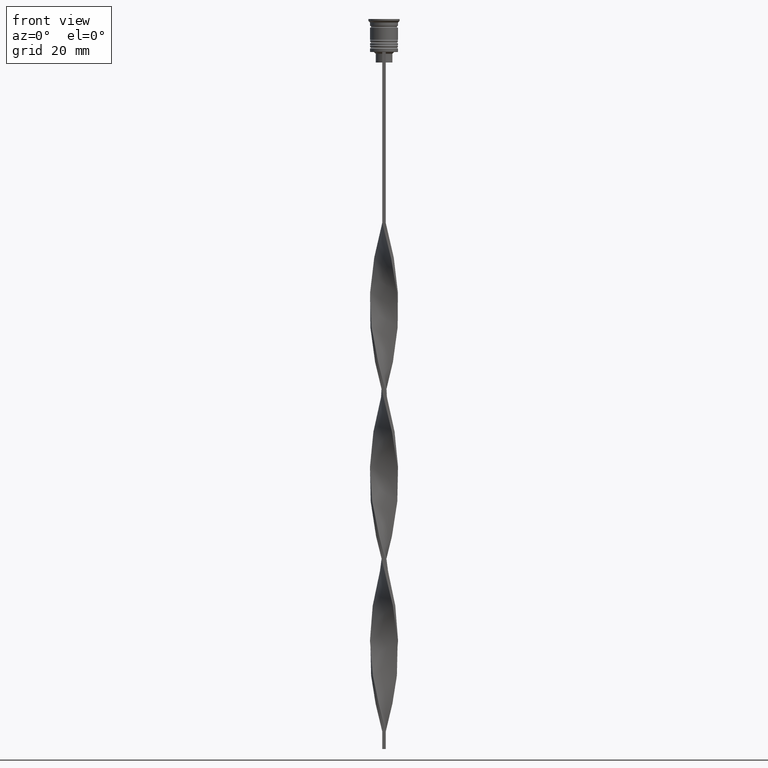
[diagram: clean part render]
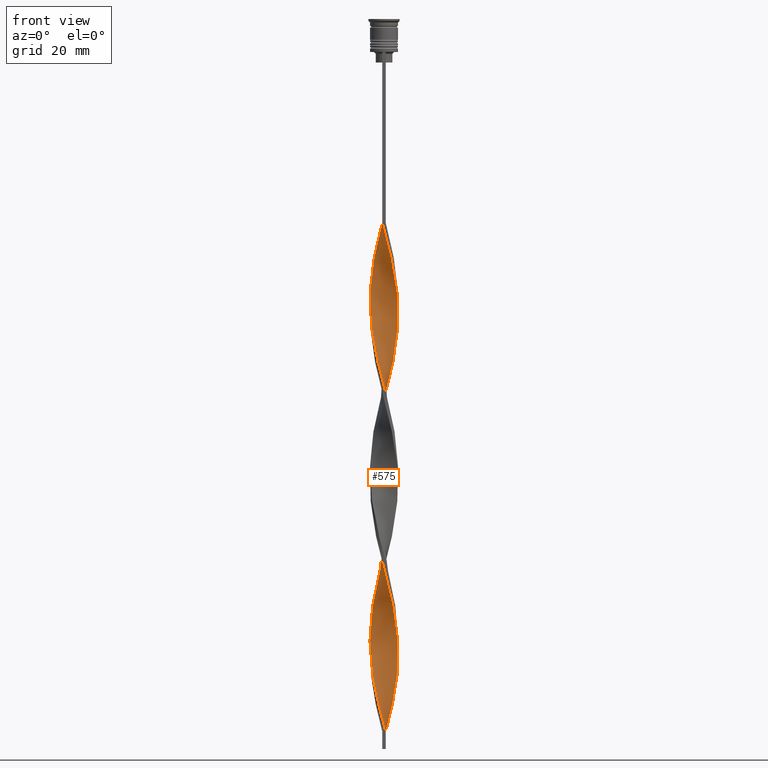
[diagram: same view with one face highlighted and labeled with its STEP entity id]
A machine part, front view. The second image highlights one B-rep face of the part: STEP entity #575.
In plain terms, the highlighted face is a freeform B-spline surface patch.
Its self-contained STEP definition (entity closure, byte-faithful):
#12 = CARTESIAN_POINT ( 'NONE',  ( 0.5000000000000005551, 4.000000000000000000, -204.5000000000000000 ) ) ;
#13 = CARTESIAN_POINT ( 'NONE',  ( -0.5000000000000000000, -4.000000000000000000, -58.50000000000000000 ) ) ;
#23 = CARTESIAN_POINT ( 'NONE',  ( -4.029070884911789108, -0.1287936502943091699, -81.40196078431371518 ) ) ;
#29 = ORIENTED_EDGE ( 'NONE', *, *, #3260, .T. ) ;
#34 = CARTESIAN_POINT ( 'NONE',  ( -4.041005374160881125, 0.2445547488692185190, -79.97058823529411598 ) ) ;
#53 = CARTESIAN_POINT ( 'NONE',  ( 3.564473500076194235, -1.919390561205869261, -174.4411764705882320 ) ) ;
#68 = CARTESIAN_POINT ( 'NONE',  ( -3.564473500076194235, -1.919390561205868817, -88.55882352941175384 ) ) ;
#69 = CARTESIAN_POINT ( 'NONE',  ( 3.856468655234277065, -1.231739002543613237, -79.97058823529411598 ) ) ;
#75 = CARTESIAN_POINT ( 'NONE',  ( 2.325278115975899507, -3.292883490705915239, -69.95098039215686470 ) ) ;
#86 = CARTESIAN_POINT ( 'NONE',  ( 3.679781925323283076, 1.687820026322619738, -188.7549019607843093 ) ) ;
#97 = CARTESIAN_POINT ( 'NONE',  ( -3.493386227310586012, 2.011529931876905763, -72.81372549019607732 ) ) ;
#110 = CARTESIAN_POINT ( 'NONE',  ( 2.821583537095226468, -2.903135856687523830, -117.1862745098039369 ) ) ;
#117 = CARTESIAN_POINT ( 'NONE',  ( -0.8706545849681190941, 3.953668176878985197, -59.93137254901961342 ) ) ;
#118 = CARTESIAN_POINT ( 'NONE',  ( 3.564473500076194235, -1.919390561205869261, -77.10784313725490335 ) ) ;
#131 = CARTESIAN_POINT ( 'NONE',  ( -1.582314657248345080, 3.726367102775659745, -160.1274509803922115 ) ) ;
#140 = CARTESIAN_POINT ( 'NONE',  ( 3.936802525448486634, -0.8669405260007252423, -81.40196078431371518 ) ) ;
#152 = CARTESIAN_POINT ( 'NONE',  ( -1.911202779450789535, 3.549268084523846678, -161.5588235294117680 ) ) ;
#175 = CARTESIAN_POINT ( 'NONE',  ( 1.680620083644617901, 3.664084624357133446, -147.2450980392156907 ) ) ;
#180 = CARTESIAN_POINT ( 'NONE',  ( 3.803522343308519016, -1.335371777428620899, -124.3431372549019471 ) ) ;
#188 = CARTESIAN_POINT ( 'NONE',  ( 3.357783987531979708, 2.230535068783685571, -138.6568627450980387 ) ) ;
#195 = CARTESIAN_POINT ( 'NONE',  ( -2.630408706874892921, -3.077414741952791744, -191.6176470588235077 ) ) ;
#202 = CARTESIAN_POINT ( 'NONE',  ( -2.325278115975899951, -3.292883490705914795, -193.0490196078431211 ) ) ;
#205 = CARTESIAN_POINT ( 'NONE',  ( -4.029070884911789996, 0.1287936502943111128, -132.9313725490196134 ) ) ;
#210 = CARTESIAN_POINT ( 'NONE',  ( -3.679781925323283076, 1.687820026322619293, -171.5784313725490620 ) ) ;
#229 = CARTESIAN_POINT ( 'NONE',  ( -2.890751590931329496, 2.809547159157145924, -121.4803921568627345 ) ) ;
#233 = DIRECTION ( 'NONE',  ( 0.000000000000000000, 1.000000000000000000, 0.000000000000000000 ) ) ;
#234 = CARTESIAN_POINT ( 'NONE',  ( -4.041005374160881125, -0.2445547488692193794, -134.3627450980391984 ) ) ;
#237 = CARTESIAN_POINT ( 'NONE',  ( -3.306990529297890724, 2.335239837431193788, -168.7156862745097783 ) ) ;
#246 = CARTESIAN_POINT ( 'NONE',  ( -1.680620083644616125, -3.664084624357134778, -195.9117647058823479 ) ) ;
#248 = CARTESIAN_POINT ( 'NONE',  ( -2.325278115975899507, 3.292883490705915239, -118.6176470588235219 ) ) ;
#255 = CARTESIAN_POINT ( 'NONE',  ( 2.890751590931330828, 2.809547159157144591, -141.5196078431372371 ) ) ;
#267 = CARTESIAN_POINT ( 'NONE',  ( 1.582314657248345968, 3.726367102775659301, -102.8725490196078312 ) ) ;
#272 = CARTESIAN_POINT ( 'NONE',  ( 3.064287033196559040, 2.619187847059357477, -95.71568627450979250 ) ) ;
#283 = EDGE_CURVE ( 'NONE', #748, #630, #1551, .T. ) ;
#289 = CARTESIAN_POINT ( 'NONE',  ( 1.226484621108232531, 3.840017639827321805, -104.3039215686274446 ) ) ;
#293 = CARTESIAN_POINT ( 'NONE',  ( 3.679781925323283076, 1.687820026322619738, -91.42156862745096646 ) ) ;
#313 = CARTESIAN_POINT ( 'NONE',  ( 1.911202779450789535, 3.549268084523846678, -101.4411764705882320 ) ) ;
#328 = CARTESIAN_POINT ( 'NONE',  ( 3.927262761293755400, 0.9829235285346250572, -185.8921568627451109 ) ) ;
#331 = CARTESIAN_POINT ( 'NONE',  ( -3.493386227310586012, 2.011529931876905763, -72.81372549019607732 ) ) ;
#332 = CARTESIAN_POINT ( 'NONE',  ( 2.630408706874892921, -3.077414741952791744, -71.38235294117646390 ) ) ;
#351 = CARTESIAN_POINT ( 'NONE',  ( -2.325278115975899951, -3.292883490705914795, -95.71568627450979250 ) ) ;
#354 = CARTESIAN_POINT ( 'NONE',  ( 3.493386227310586456, 2.011529931876905319, -92.85294117647057988 ) ) ;
#357 = CARTESIAN_POINT ( 'NONE',  ( -0.5000000000000000000, -4.000000000000000000, -58.50000000000000000 ) ) ;
#372 = CARTESIAN_POINT ( 'NONE',  ( 1.582314657248345968, 3.726367102775659745, -200.2058823529411598 ) ) ;
#373 = CARTESIAN_POINT ( 'NONE',  ( 3.984134067727318040, 0.6137391387019219824, -87.12745098039215463 ) ) ;
#386 = CARTESIAN_POINT ( 'NONE',  ( 3.984134067727318040, 0.6137391387019219824, -184.4607843137254690 ) ) ;
#389 = CARTESIAN_POINT ( 'NONE',  ( -2.530837219374230340, 3.137652461479778943, -67.08823529411763786 ) ) ;
#396 = CARTESIAN_POINT ( 'NONE',  ( 0.5000000000000002220, 1.333333333333333481, -204.5000000000000000 ) ) ;
#410 = CARTESIAN_POINT ( 'NONE',  ( -1.911202779450789535, 3.549268084523846678, -64.22549019607842524 ) ) ;
#420 = CARTESIAN_POINT ( 'NONE',  ( -3.710471077655235206, -1.575564781874741138, -87.12745098039215463 ) ) ;
#434 = CARTESIAN_POINT ( 'NONE',  ( 2.530837219374230784, -3.137652461479778498, -115.7549019607843093 ) ) ;
#452 = CARTESIAN_POINT ( 'NONE',  ( 0.9787305500464340557, 3.910509750710999821, -150.1078431372548891 ) ) ;
#469 = CARTESIAN_POINT ( 'NONE',  ( -3.856468655234276621, -1.231739002543613681, -183.0294117647059124 ) ) ;
#477 = CARTESIAN_POINT ( 'NONE',  ( -2.325278115975899951, -3.292883490705914795, -193.0490196078431211 ) ) ;
#488 = CARTESIAN_POINT ( 'NONE',  ( -2.821583537095227356, 2.903135856687522942, -165.8529411764705799 ) ) ;
#491 = ORIENTED_EDGE ( 'NONE', *, *, #543, .F. ) ;
#496 = CARTESIAN_POINT ( 'NONE',  ( -0.6163684578805426195, -4.001202492166770597, -200.2058823529411882 ) ) ;
#506 = CARTESIAN_POINT ( 'NONE',  ( 3.493386227310585568, -2.011529931876906208, -121.4803921568627345 ) ) ;
#513 = CARTESIAN_POINT ( 'NONE',  ( -3.064287033196558596, 2.619187847059357921, -167.2843137254901933 ) ) ;
#525 = CARTESIAN_POINT ( 'NONE',  ( -2.630408706874893365, 3.077414741952791299, -120.0490196078431353 ) ) ;
#530 = CARTESIAN_POINT ( 'NONE',  ( 3.564473500076194679, 1.919390561205867707, -137.2254901960784537 ) ) ;
#543 = EDGE_CURVE ( 'NONE', #630, #885, #3564, .T. ) ;
#549 = CARTESIAN_POINT ( 'NONE',  ( -3.564473500076193790, 1.919390561205869039, -125.7745098039216032 ) ) ;
#555 = CARTESIAN_POINT ( 'NONE',  ( 3.064287033196558596, -2.619187847059357921, -118.6176470588235219 ) ) ;
#570 = CARTESIAN_POINT ( 'NONE',  ( 3.151094474987766958, -2.541679576361500104, -171.5784313725490620 ) ) ;
#574 = CARTESIAN_POINT ( 'NONE',  ( 1.226484621108232531, 3.840017639827321805, -104.3039215686274446 ) ) ;
#575 = ADVANCED_FACE ( 'NONE', ( #2290 ), #2368, .T. ) ;
#590 = CARTESIAN_POINT ( 'NONE',  ( -3.936802525448487522, 0.8669405260007250202, -130.0686274509803866 ) ) ;
#594 = CARTESIAN_POINT ( 'NONE',  ( -3.306990529297890724, -2.335239837431195120, -142.9509803921568789 ) ) ;
#613 = CARTESIAN_POINT ( 'NONE',  ( 0.2435115214243304405, -4.023767157643892034, -158.6960784313725412 ) ) ;
#630 = VERTEX_POINT ( 'NONE', #1186 ) ;
#632 = CARTESIAN_POINT ( 'NONE',  ( 3.803522343308519016, 1.335371777428621565, -187.3235294117646959 ) ) ;
#636 = CARTESIAN_POINT ( 'NONE',  ( -3.927262761293754956, 0.9829235285346253903, -77.10784313725490335 ) ) ;
#639 = CARTESIAN_POINT ( 'NONE',  ( 0.4999999999999994449, -4.000000000000000000, -204.5000000000000000 ) ) ;
#655 = CARTESIAN_POINT ( 'NONE',  ( -3.710471077655235206, -1.575564781874741138, -87.12745098039215463 ) ) ;
#670 = CARTESIAN_POINT ( 'NONE',  ( 1.911202779450789535, 3.549268084523846678, -198.7745098039215463 ) ) ;
#674 = CARTESIAN_POINT ( 'NONE',  ( -1.341092642212326824, -3.819817009255229934, -100.0098039215686327 ) ) ;
#676 = CARTESIAN_POINT ( 'NONE',  ( 2.530837219374230340, 3.137652461479778943, -98.57843137254901933 ) ) ;
#696 = CARTESIAN_POINT ( 'NONE',  ( -3.064287033196558596, 2.619187847059357921, -69.95098039215686470 ) ) ;
#712 = CARTESIAN_POINT ( 'NONE',  ( 3.984134067727318040, 0.6137391387019219824, -184.4607843137254690 ) ) ;
#717 = CARTESIAN_POINT ( 'NONE',  ( -4.017136395662697979, -0.5021420494578370253, -82.83333333333332860 ) ) ;
#719 = CARTESIAN_POINT ( 'NONE',  ( 0.4999999999999997780, -1.333333333333333481, -204.5000000000000000 ) ) ;
#730 = CARTESIAN_POINT ( 'NONE',  ( 0.4999999999999994449, -4.000000000000000000, -107.1666666666666572 ) ) ;
#740 = CARTESIAN_POINT ( 'NONE',  ( 1.911202779450790201, -3.549268084523846234, -112.8921568627450966 ) ) ;
#748 = VERTEX_POINT ( 'NONE', #357 ) ;
#754 = CARTESIAN_POINT ( 'NONE',  ( 1.582314657248345080, -3.726367102775659745, -111.4607843137254974 ) ) ;
#760 = CARTESIAN_POINT ( 'NONE',  ( 0.8706545849681194271, -3.953668176878985197, -108.5980392156862706 ) ) ;
#770 = CARTESIAN_POINT ( 'NONE',  ( -3.493386227310586012, 2.011529931876905763, -170.1470588235293917 ) ) ;
#776 = CARTESIAN_POINT ( 'NONE',  ( -2.890751590931330384, -2.809547159157145035, -190.1862745098039227 ) ) ;
#784 = CARTESIAN_POINT ( 'NONE',  ( -3.151094474987767402, -2.541679576361500548, -188.7549019607843093 ) ) ;
#794 = CARTESIAN_POINT ( 'NONE',  ( 3.357783987531979708, 2.230535068783685571, -138.6568627450980387 ) ) ;
#806 = CARTESIAN_POINT ( 'NONE',  ( -2.630408706874893365, -3.077414741952792188, -191.6176470588235077 ) ) ;
#813 = CARTESIAN_POINT ( 'NONE',  ( 0.2435115214243293580, 4.023767157643892034, -152.9705882352941160 ) ) ;
#823 = CARTESIAN_POINT ( 'NONE',  ( 3.564473500076193790, -1.919390561205869261, -174.4411764705882320 ) ) ;
#825 = CARTESIAN_POINT ( 'NONE',  ( -2.325278115975899507, 3.292883490705915239, -118.6176470588235219 ) ) ;
#828 = CARTESIAN_POINT ( 'NONE',  ( 3.493386227310585568, -2.011529931876906208, -121.4803921568627345 ) ) ;
#841 = CARTESIAN_POINT ( 'NONE',  ( -2.821583537095227356, -2.903135856687522498, -145.8137254901960489 ) ) ;
#845 = CARTESIAN_POINT ( 'NONE',  ( 3.927262761293754956, 0.9829235285346250572, -88.55882352941175384 ) ) ;
#849 = CARTESIAN_POINT ( 'NONE',  ( 4.041005374160881125, -0.2445547488692170757, -128.6372549019607732 ) ) ;
#853 =( BOUNDED_CURVE ( )  B_SPLINE_CURVE ( 2, ( #1620, #117, #1664, #3485, #2891, #2871, #2248, #1968, #2851, #1382, #97, #1644, #1032, #3446, #1546, #2778, #23, #717, #1944, #1683, #420, #3177, #1341, #3156, #3801, #2152, #2568, #1323, #1245, #2535, #2263, #1056, #2911, #2552, #3759, #760, #2612, #3464, #740, #1401, #2361, #3261, #555, #3816, #828, #1723, #180, #1089, #3538, #849, #2669, #3286, #3853, #2039, #2343, #530, #794, #2082, #255, #1107, #2984, #1759, #2057, #2935, #1782, #3001, #813, #2965, #3230, #2025, #1475, #3243, #2630, #2646, #1148, #1458, #513, #237, #1738, #210, #2707, #2326, #2381, #2951, #1075, #3554, #2309, #3499, #2006, #3575, #1126, #3518, #776, #195, #477, #2688, #1438, #3874, #3210, #496, #1706, #1419, #3831 ),
 .UNSPECIFIED., .F., .T. ) 
 B_SPLINE_CURVE_WITH_KNOTS ( ( 3, 2, 2, 2, 2, 2, 2, 2, 2, 2, 2, 2, 2, 2, 2, 2, 2, 2, 2, 2, 2, 2, 2, 2, 2, 2, 2, 2, 2, 2, 2, 2, 2, 2, 2, 2, 2, 2, 2, 2, 2, 2, 2, 2, 2, 2, 2, 2, 2, 2, 2, 3 ),
 ( 0.000000000000000000, 0.01470588235294117453, 0.02941176470588234906, 0.04411764705882353227, 0.05882352941176469813, 0.07352941176470588480, 0.08823529411764706454, 0.1029411764705882443, 0.1176470588235293963, 0.1323529411764705899, 0.1470588235294117696, 0.1617647058823529493, 0.1764705882352941291, 0.1911764705882352811, 0.2058823529411764885, 0.2205882352941176405, 0.2352941176470587925, 0.2500000000000000000, 0.2647058823529411797, 0.2794117647058823595, 0.2941176470588235392, 0.3088235294117647189, 0.3235294117647058987, 0.3382352941176470229, 0.3529411764705882582, 0.3676470588235294379, 0.3823529411764705621, 0.3970588235294117418, 0.4117647058823529771, 0.4264705882352941013, 0.4411764705882352811, 0.4558823529411764608, 0.4705882352941175850, 0.4852941176470588203, 0.5000000000000000000, 0.5147058823529411242, 0.5294117647058823595, 0.5441176470588234837, 0.5588235294117647189, 0.5735294117647058432, 0.5882352941176470784, 0.6029411764705882026, 0.6176470588235294379, 0.6323529411764705621, 0.6470588235294117974, 0.6617647058823529216, 0.6764705882352940458, 0.6911764705882351700, 0.7058823529411765163, 0.7205882352941176405, 0.7352941176470588758, 0.7500000000000000000 ),
 .UNSPECIFIED. ) 
 CURVE ( )  GEOMETRIC_REPRESENTATION_ITEM ( )  RATIONAL_B_SPLINE_CURVE ( ( 1.000000000000000000, 0.9957341762950344677, 1.000000000000000000, 0.9957341762950344677, 1.000000000000000000, 0.9957341762950344677, 1.000000000000000000, 0.9957341762950344677, 1.000000000000000000, 0.9957341762950344677, 1.000000000000000000, 0.9957341762950344677, 1.000000000000000000, 0.9957341762950344677, 1.000000000000000000, 0.9957341762950344677, 1.000000000000000000, 0.9957341762950344677, 1.000000000000000000, 0.9957341762950344677, 1.000000000000000000, 0.9957341762950344677, 1.000000000000000000, 0.9957341762950344677, 1.000000000000000000, 0.9957341762950344677, 1.000000000000000000, 0.9957341762950344677, 1.000000000000000000, 0.9957341762950344677, 1.000000000000000000, 0.9957341762950344677, 1.000000000000000000, 0.9957341762950344677, 1.000000000000000000, 0.9957341762950344677, 1.000000000000000000, 0.9957341762950344677, 1.000000000000000000, 0.9957341762950344677, 1.000000000000000000, 0.9957341762950344677, 1.000000000000000000, 0.9957341762950344677, 1.000000000000000000, 0.9957341762950344677, 1.000000000000000000, 0.9957341762950344677, 1.000000000000000000, 0.9957341762950344677, 1.000000000000000000, 0.9957341762950344677, 1.000000000000000000, 0.9957341762950344677, 1.000000000000000000, 0.9957341762950344677, 1.000000000000000000, 0.9957341762950344677, 1.000000000000000000, 0.9957341762950344677, 1.000000000000000000, 0.9957341762950344677, 1.000000000000000000, 0.9957341762950344677, 1.000000000000000000, 0.9957341762950344677, 1.000000000000000000, 0.9957341762950344677, 1.000000000000000000, 0.9957341762950344677, 1.000000000000000000, 0.9957341762950344677, 1.000000000000000000, 0.9957341762950344677, 1.000000000000000000, 0.9957341762950344677, 1.000000000000000000, 0.9957341762950344677, 1.000000000000000000, 0.9957341762950344677, 1.000000000000000000, 0.9957341762950344677, 1.000000000000000000, 0.9957341762950344677, 1.000000000000000000, 0.9957341762950344677, 1.000000000000000000, 0.9957341762950344677, 1.000000000000000000, 0.9957341762950344677, 1.000000000000000000, 0.9957341762950344677, 1.000000000000000000, 0.9957341762950344677, 1.000000000000000000, 0.9957341762950344677, 1.000000000000000000, 0.9957341762950344677, 1.000000000000000000, 0.9957341762950344677, 1.000000000000000000, 0.9957341762950344677, 1.000000000000000000 ) ) 
 REPRESENTATION_ITEM ( '' )  );
#867 = CARTESIAN_POINT ( 'NONE',  ( -3.151094474987766514, 2.541679576361500992, -122.9117647058823621 ) ) ;
#872 = CARTESIAN_POINT ( 'NONE',  ( -2.890751590931329496, 2.809547159157145924, -121.4803921568627345 ) ) ;
#885 = VERTEX_POINT ( 'NONE', #639 ) ;
#886 = VERTEX_POINT ( 'NONE', #2528 ) ;
#887 = CARTESIAN_POINT ( 'NONE',  ( 0.6163684578805417313, -4.001202492166770597, -160.1274509803921831 ) ) ;
#906 = CARTESIAN_POINT ( 'NONE',  ( -3.927262761293754956, -0.9829235285346239470, -137.2254901960784821 ) ) ;
#933 = CARTESIAN_POINT ( 'NONE',  ( -1.226484621108232309, 3.840017639827321805, -61.36274509803921262 ) ) ;
#952 = CARTESIAN_POINT ( 'NONE',  ( -3.856468655234276621, -1.231739002543613681, -85.69607843137254122 ) ) ;
#953 = CARTESIAN_POINT ( 'NONE',  ( 3.357783987531980152, -2.230535068783684682, -75.67647058823528994 ) ) ;
#968 = CARTESIAN_POINT ( 'NONE',  ( 2.020147525076906536, -3.508352239459040067, -165.8529411764705799 ) ) ;
#969 = CARTESIAN_POINT ( 'NONE',  ( 3.803522343308519016, 1.335371777428621565, -89.99019607843136725 ) ) ;
#991 = CARTESIAN_POINT ( 'NONE',  ( -3.306990529297891168, 2.335239837431193788, -71.38235294117646390 ) ) ;
#1008 = CARTESIAN_POINT ( 'NONE',  ( 0.5000000000000005551, 4.000000000000000000, -204.5000000000000000 ) ) ;
#1011 = CARTESIAN_POINT ( 'NONE',  ( 3.151094474987767402, -2.541679576361500104, -171.5784313725490335 ) ) ;
#1017 = CARTESIAN_POINT ( 'NONE',  ( 1.680620083644616125, -3.664084624357134778, -67.08823529411763786 ) ) ;
#1027 = CARTESIAN_POINT ( 'NONE',  ( -0.6163684578805426195, -4.001202492166771485, -102.8725490196078312 ) ) ;
#1032 = CARTESIAN_POINT ( 'NONE',  ( -3.803522343308519016, 1.335371777428622009, -75.67647058823528994 ) ) ;
#1048 = CARTESIAN_POINT ( 'NONE',  ( -3.064287033196558596, 2.619187847059357921, -167.2843137254901933 ) ) ;
#1056 = CARTESIAN_POINT ( 'NONE',  ( -0.6163684578805426195, -4.001202492166770597, -102.8725490196078312 ) ) ;
#1069 = CARTESIAN_POINT ( 'NONE',  ( 2.240090901653234656, -3.372169066272035387, -114.3235294117646959 ) ) ;
#1075 = CARTESIAN_POINT ( 'NONE',  ( -4.029070884911789108, -0.1287936502943091699, -178.7352941176470438 ) ) ;
#1084 = CARTESIAN_POINT ( 'NONE',  ( 3.927262761293754956, -0.9829235285346251683, -125.7745098039216032 ) ) ;
#1089 = CARTESIAN_POINT ( 'NONE',  ( 3.927262761293755400, -0.9829235285346252793, -125.7745098039216032 ) ) ;
#1098 = CARTESIAN_POINT ( 'NONE',  ( 3.984134067727318040, -0.6137391387019228706, -127.2058823529411740 ) ) ;
#1107 = CARTESIAN_POINT ( 'NONE',  ( 2.630408706874892033, 3.077414741952792188, -142.9509803921568789 ) ) ;
#1121 = CARTESIAN_POINT ( 'NONE',  ( 2.240090901653235100, 3.372169066272034499, -100.0098039215686327 ) ) ;
#1123 = CARTESIAN_POINT ( 'NONE',  ( -0.1293454150318809337, -4.046331823121015248, -157.2647058823529278 ) ) ;
#1126 = CARTESIAN_POINT ( 'NONE',  ( -3.357783987531980152, -2.230535068783684238, -187.3235294117646959 ) ) ;
#1142 = CARTESIAN_POINT ( 'NONE',  ( -3.710471077655234762, 1.575564781874742026, -127.2058823529411740 ) ) ;
#1146 = CARTESIAN_POINT ( 'NONE',  ( 4.017136395662697979, -0.5021420494578374694, -82.83333333333332860 ) ) ;
#1148 = CARTESIAN_POINT ( 'NONE',  ( -2.530837219374230340, 3.137652461479778943, -164.4215686274509665 ) ) ;
#1163 = CARTESIAN_POINT ( 'NONE',  ( 1.680620083644616125, -3.664084624357134778, -164.4215686274509665 ) ) ;
#1168 = CARTESIAN_POINT ( 'NONE',  ( 0.5000000000000005551, 4.000000000000000000, -107.1666666666666572 ) ) ;
#1186 = CARTESIAN_POINT ( 'NONE',  ( 0.5000000000000005551, 4.000000000000000000, -204.5000000000000000 ) ) ;
#1190 = CARTESIAN_POINT ( 'NONE',  ( 3.856468655234277065, -1.231739002543613237, -177.3039215686274588 ) ) ;
#1195 = CARTESIAN_POINT ( 'NONE',  ( -4.017136395662697979, 0.5021420494578380245, -131.5000000000000000 ) ) ;
#1211 = CARTESIAN_POINT ( 'NONE',  ( -0.6163684578805417313, 4.001202492166770597, -111.4607843137254974 ) ) ;
#1214 = CARTESIAN_POINT ( 'NONE',  ( -1.226484621108231199, -3.840017639827321805, -152.9705882352941160 ) ) ;
#1229 = CARTESIAN_POINT ( 'NONE',  ( 3.679781925323283076, 1.687820026322619738, -188.7549019607843093 ) ) ;
#1232 = CARTESIAN_POINT ( 'NONE',  ( -3.803522343308519016, 1.335371777428622009, -75.67647058823528994 ) ) ;
#1245 = CARTESIAN_POINT ( 'NONE',  ( -1.680620083644616125, -3.664084624357134778, -98.57843137254901933 ) ) ;
#1254 = CARTESIAN_POINT ( 'NONE',  ( 2.821583537095227356, 2.903135856687522942, -194.4803921568627914 ) ) ;
#1255 = CARTESIAN_POINT ( 'NONE',  ( 2.890751590931329940, -2.809547159157145479, -72.81372549019607732 ) ) ;
#1275 = CARTESIAN_POINT ( 'NONE',  ( 2.325278115975899507, -3.292883490705915239, -167.2843137254901933 ) ) ;
#1278 = CARTESIAN_POINT ( 'NONE',  ( 3.306990529297890724, 2.335239837431193788, -94.28431372549020750 ) ) ;
#1293 = CARTESIAN_POINT ( 'NONE',  ( -3.151094474987767402, -2.541679576361500548, -91.42156862745096646 ) ) ;
#1294 = CARTESIAN_POINT ( 'NONE',  ( 4.029070884911789996, -0.1287936502943097528, -84.26470588235294201 ) ) ;
#1301 = CARTESIAN_POINT ( 'NONE',  ( 0.4999999999999994449, -4.000000000000000000, -204.5000000000000000 ) ) ;
#1311 = CARTESIAN_POINT ( 'NONE',  ( 1.582314657248345968, 3.726367102775659301, -200.2058823529411882 ) ) ;
#1315 = CARTESIAN_POINT ( 'NONE',  ( 3.927262761293754956, 0.9829235285346250572, -185.8921568627451109 ) ) ;
#1323 = CARTESIAN_POINT ( 'NONE',  ( -2.020147525076906980, -3.508352239459040067, -97.14705882352940591 ) ) ;
#1334 = CARTESIAN_POINT ( 'NONE',  ( 0.1293454150318815721, -4.046331823121016136, -105.7352941176470722 ) ) ;
#1341 = CARTESIAN_POINT ( 'NONE',  ( -3.357783987531980152, -2.230535068783684238, -89.99019607843136725 ) ) ;
#1342 = CARTESIAN_POINT ( 'NONE',  ( 3.710471077655235206, -1.575564781874740694, -78.53921568627450256 ) ) ;
#1353 = CARTESIAN_POINT ( 'NONE',  ( 3.803522343308519016, -1.335371777428620899, -124.3431372549019471 ) ) ;
#1367 = ORIENTED_EDGE ( 'NONE', *, *, #283, .F. ) ;
#1373 = CARTESIAN_POINT ( 'NONE',  ( -3.679781925323283076, 1.687820026322619293, -171.5784313725490335 ) ) ;
#1382 = CARTESIAN_POINT ( 'NONE',  ( -3.306990529297890724, 2.335239837431193788, -71.38235294117646390 ) ) ;
#1384 = CARTESIAN_POINT ( 'NONE',  ( 1.341092642212326380, -3.819817009255230822, -65.65686274509803866 ) ) ;
#1389 = EDGE_LOOP ( 'NONE', ( #29, #3100, #491, #1367 ) ) ;
#1394 = CARTESIAN_POINT ( 'NONE',  ( 3.064287033196558596, -2.619187847059357921, -118.6176470588235219 ) ) ;
#1401 = CARTESIAN_POINT ( 'NONE',  ( 2.240090901653234212, -3.372169066272035387, -114.3235294117646959 ) ) ;
#1410 = CARTESIAN_POINT ( 'NONE',  ( 3.151094474987767402, 2.541679576361500104, -140.0882352941176237 ) ) ;
#1419 = CARTESIAN_POINT ( 'NONE',  ( 0.1293454150318815721, -4.046331823121016136, -203.0686274509803582 ) ) ;
#1431 = CARTESIAN_POINT ( 'NONE',  ( 0.1293454150318806006, 4.046331823121015248, -108.5980392156862706 ) ) ;
#1438 = CARTESIAN_POINT ( 'NONE',  ( -1.680620083644616125, -3.664084624357134778, -195.9117647058823479 ) ) ;
#1454 = CARTESIAN_POINT ( 'NONE',  ( -3.984134067727318040, -0.6137391387019215383, -135.7941176470588118 ) ) ;
#1458 = CARTESIAN_POINT ( 'NONE',  ( -2.821583537095227356, 2.903135856687522942, -165.8529411764705799 ) ) ;
#1468 = CARTESIAN_POINT ( 'NONE',  ( -3.984134067727318040, -0.6137391387019215383, -135.7941176470588118 ) ) ;
#1472 = CARTESIAN_POINT ( 'NONE',  ( 3.984134067727318040, 0.6137391387019219824, -87.12745098039215463 ) ) ;
#1475 = CARTESIAN_POINT ( 'NONE',  ( -1.226484621108232309, 3.840017639827321805, -158.6960784313725412 ) ) ;
#1489 = CARTESIAN_POINT ( 'NONE',  ( -0.9787305500464342778, 3.910509750710998933, -112.8921568627450966 ) ) ;
#1494 = CARTESIAN_POINT ( 'NONE',  ( -3.856468655234277509, 1.231739002543611905, -128.6372549019607447 ) ) ;
#1512 = CARTESIAN_POINT ( 'NONE',  ( 0.8706545849681186500, 3.953668176878986085, -105.7352941176470722 ) ) ;
#1517 = CARTESIAN_POINT ( 'NONE',  ( -2.821583537095227356, -2.903135856687522498, -145.8137254901960489 ) ) ;
#1535 = CARTESIAN_POINT ( 'NONE',  ( -0.5000000000000000000, -4.000000000000000000, -155.8333333333333144 ) ) ;
#1546 = CARTESIAN_POINT ( 'NONE',  ( -3.984134067727318040, 0.6137391387019215383, -78.53921568627450256 ) ) ;
#1551 =( BOUNDED_CURVE ( )  B_SPLINE_CURVE ( 2, ( #13, #1861, #1801, #2687, #3116, #1600, #2202, #2508, #2825, #332, #1255, #3683, #953, #3386, #1580, #69, #1557, #2807, #1294, #2184, #373, #1878, #969, #3097, #354, #1278, #3698, #3403, #676, #1121, #3932, #267, #289, #1512, #2978, #1431, #1838, #1211, #1489, #3319, #3276, #3868, #248, #525, #229, #867, #2682, #549, #1142, #2661, #590, #2374, #205, #2096, #1468, #3909, #3568, #3340, #2072, #3592, #3012, #841, #2133, #2700, #1751, #1775, #2747, #3029, #3887, #3614, #613, #887, #2723, #3847, #1163, #2397, #2357, #3299, #3631, #570, #3550, #823, #1795, #1190, #2425, #2052, #3073, #3420, #386, #328, #632, #1229, #2820, #3677, #2159, #1857, #1574, #2839, #670, #1311, #1897, #3711, #1008 ),
 .UNSPECIFIED., .F., .T. ) 
 B_SPLINE_CURVE_WITH_KNOTS ( ( 3, 2, 2, 2, 2, 2, 2, 2, 2, 2, 2, 2, 2, 2, 2, 2, 2, 2, 2, 2, 2, 2, 2, 2, 2, 2, 2, 2, 2, 2, 2, 2, 2, 2, 2, 2, 2, 2, 2, 2, 2, 2, 2, 2, 2, 2, 2, 2, 2, 2, 2, 3 ),
 ( 0.000000000000000000, 0.01470588235294117453, 0.02941176470588234906, 0.04411764705882353227, 0.05882352941176469813, 0.07352941176470588480, 0.08823529411764706454, 0.1029411764705882443, 0.1176470588235293963, 0.1323529411764705899, 0.1470588235294117696, 0.1617647058823529493, 0.1764705882352941291, 0.1911764705882352811, 0.2058823529411764885, 0.2205882352941176405, 0.2352941176470587925, 0.2500000000000000000, 0.2647058823529411797, 0.2794117647058823595, 0.2941176470588235392, 0.3088235294117647189, 0.3235294117647058987, 0.3382352941176470229, 0.3529411764705882582, 0.3676470588235294379, 0.3823529411764705621, 0.3970588235294117418, 0.4117647058823529771, 0.4264705882352941013, 0.4411764705882352811, 0.4558823529411764608, 0.4705882352941175850, 0.4852941176470588203, 0.5000000000000000000, 0.5147058823529411242, 0.5294117647058823595, 0.5441176470588234837, 0.5588235294117647189, 0.5735294117647058432, 0.5882352941176470784, 0.6029411764705882026, 0.6176470588235294379, 0.6323529411764705621, 0.6470588235294117974, 0.6617647058823529216, 0.6764705882352940458, 0.6911764705882351700, 0.7058823529411765163, 0.7205882352941176405, 0.7352941176470588758, 0.7500000000000000000 ),
 .UNSPECIFIED. ) 
 CURVE ( )  GEOMETRIC_REPRESENTATION_ITEM ( )  RATIONAL_B_SPLINE_CURVE ( ( 1.000000000000000000, 0.9957341762950344677, 1.000000000000000000, 0.9957341762950344677, 1.000000000000000000, 0.9957341762950344677, 1.000000000000000000, 0.9957341762950344677, 1.000000000000000000, 0.9957341762950344677, 1.000000000000000000, 0.9957341762950344677, 1.000000000000000000, 0.9957341762950344677, 1.000000000000000000, 0.9957341762950344677, 1.000000000000000000, 0.9957341762950344677, 1.000000000000000000, 0.9957341762950344677, 1.000000000000000000, 0.9957341762950344677, 1.000000000000000000, 0.9957341762950344677, 1.000000000000000000, 0.9957341762950344677, 1.000000000000000000, 0.9957341762950344677, 1.000000000000000000, 0.9957341762950344677, 1.000000000000000000, 0.9957341762950344677, 1.000000000000000000, 0.9957341762950344677, 1.000000000000000000, 0.9957341762950344677, 1.000000000000000000, 0.9957341762950344677, 1.000000000000000000, 0.9957341762950344677, 1.000000000000000000, 0.9957341762950344677, 1.000000000000000000, 0.9957341762950344677, 1.000000000000000000, 0.9957341762950344677, 1.000000000000000000, 0.9957341762950344677, 1.000000000000000000, 0.9957341762950344677, 1.000000000000000000, 0.9957341762950344677, 1.000000000000000000, 0.9957341762950344677, 1.000000000000000000, 0.9957341762950344677, 1.000000000000000000, 0.9957341762950344677, 1.000000000000000000, 0.9957341762950344677, 1.000000000000000000, 0.9957341762950344677, 1.000000000000000000, 0.9957341762950344677, 1.000000000000000000, 0.9957341762950344677, 1.000000000000000000, 0.9957341762950344677, 1.000000000000000000, 0.9957341762950344677, 1.000000000000000000, 0.9957341762950344677, 1.000000000000000000, 0.9957341762950344677, 1.000000000000000000, 0.9957341762950344677, 1.000000000000000000, 0.9957341762950344677, 1.000000000000000000, 0.9957341762950344677, 1.000000000000000000, 0.9957341762950344677, 1.000000000000000000, 0.9957341762950344677, 1.000000000000000000, 0.9957341762950344677, 1.000000000000000000, 0.9957341762950344677, 1.000000000000000000, 0.9957341762950344677, 1.000000000000000000, 0.9957341762950344677, 1.000000000000000000, 0.9957341762950344677, 1.000000000000000000, 0.9957341762950344677, 1.000000000000000000, 0.9957341762950344677, 1.000000000000000000, 0.9957341762950344677, 1.000000000000000000, 0.9957341762950344677, 1.000000000000000000 ) ) 
 REPRESENTATION_ITEM ( '' )  );
#1556 = CARTESIAN_POINT ( 'NONE',  ( 3.803522343308519016, 1.335371777428621565, -187.3235294117646959 ) ) ;
#1557 = CARTESIAN_POINT ( 'NONE',  ( 3.936802525448486634, -0.8669405260007252423, -81.40196078431371518 ) ) ;
#1574 = CARTESIAN_POINT ( 'NONE',  ( 2.530837219374230340, 3.137652461479778943, -195.9117647058823479 ) ) ;
#1579 = CARTESIAN_POINT ( 'NONE',  ( -2.020147525076906536, -3.508352239459040067, -97.14705882352939170 ) ) ;
#1580 = CARTESIAN_POINT ( 'NONE',  ( 3.710471077655235206, -1.575564781874740694, -78.53921568627450256 ) ) ;
#1599 = CARTESIAN_POINT ( 'NONE',  ( 0.9787305500464337227, -3.910509750710999821, -161.5588235294117680 ) ) ;
#1600 = CARTESIAN_POINT ( 'NONE',  ( 1.341092642212326380, -3.819817009255230822, -65.65686274509803866 ) ) ;
#1608 = CARTESIAN_POINT ( 'NONE',  ( -0.1293454150318809337, -4.046331823121015248, -59.93137254901961342 ) ) ;
#1617 = CARTESIAN_POINT ( 'NONE',  ( 3.306990529297891168, 2.335239837431193788, -191.6176470588235077 ) ) ;
#1620 = CARTESIAN_POINT ( 'NONE',  ( -0.5000000000000000000, 4.000000000000000000, -58.50000000000000000 ) ) ;
#1622 = CARTESIAN_POINT ( 'NONE',  ( 0.5000000000000005551, 4.000000000000000000, -204.5000000000000000 ) ) ;
#1633 = CARTESIAN_POINT ( 'NONE',  ( -2.240090901653235100, 3.372169066272035387, -65.65686274509803866 ) ) ;
#1644 = CARTESIAN_POINT ( 'NONE',  ( -3.679781925323283076, 1.687820026322619293, -74.24509803921567652 ) ) ;
#1658 = CARTESIAN_POINT ( 'NONE',  ( 2.890751590931330828, 2.809547159157144591, -141.5196078431372371 ) ) ;
#1664 = CARTESIAN_POINT ( 'NONE',  ( -1.226484621108232309, 3.840017639827321805, -61.36274509803921262 ) ) ;
#1675 = CARTESIAN_POINT ( 'NONE',  ( -0.2435115214243305515, -4.023767157643892034, -104.3039215686274446 ) ) ;
#1683 = CARTESIAN_POINT ( 'NONE',  ( -3.856468655234277065, -1.231739002543613681, -85.69607843137254122 ) ) ;
#1684 = CARTESIAN_POINT ( 'NONE',  ( 0.9787305500464337227, -3.910509750710999821, -64.22549019607842524 ) ) ;
#1697 = CARTESIAN_POINT ( 'NONE',  ( -4.017136395662697979, -0.5021420494578370253, -180.1666666666666288 ) ) ;
#1706 = CARTESIAN_POINT ( 'NONE',  ( -0.2435115214243305515, -4.023767157643892034, -201.6372549019607732 ) ) ;
#1716 = CARTESIAN_POINT ( 'NONE',  ( 3.679781925323282632, -1.687820026322619960, -122.9117647058823479 ) ) ;
#1723 = CARTESIAN_POINT ( 'NONE',  ( 3.679781925323282632, -1.687820026322620182, -122.9117647058823621 ) ) ;
#1738 = CARTESIAN_POINT ( 'NONE',  ( -3.493386227310586012, 2.011529931876905763, -170.1470588235293917 ) ) ;
#1751 = CARTESIAN_POINT ( 'NONE',  ( -1.911202779450789979, -3.549268084523846678, -150.1078431372548891 ) ) ;
#1759 = CARTESIAN_POINT ( 'NONE',  ( 2.020147525076907424, 3.508352239459039623, -145.8137254901960489 ) ) ;
#1773 = CARTESIAN_POINT ( 'NONE',  ( -0.9787305500464337227, -3.910509750710999821, -198.7745098039215463 ) ) ;
#1775 = CARTESIAN_POINT ( 'NONE',  ( -1.582314657248346412, -3.726367102775658413, -151.5392156862744741 ) ) ;
#1780 = CARTESIAN_POINT ( 'NONE',  ( -3.564473500076194235, 1.919390561205869039, -125.7745098039216032 ) ) ;
#1782 = CARTESIAN_POINT ( 'NONE',  ( 0.9787305500464340557, 3.910509750710999821, -150.1078431372548891 ) ) ;
#1795 = CARTESIAN_POINT ( 'NONE',  ( 3.710471077655235206, -1.575564781874740694, -175.8725490196078454 ) ) ;
#1801 = CARTESIAN_POINT ( 'NONE',  ( 0.2435115214243304405, -4.023767157643892034, -61.36274509803921262 ) ) ;
#1818 = CARTESIAN_POINT ( 'NONE',  ( -3.064287033196558152, -2.619187847059358365, -144.3823529411764639 ) ) ;
#1838 = CARTESIAN_POINT ( 'NONE',  ( -0.2435115214243295800, 4.023767157643892034, -110.0294117647058698 ) ) ;
#1841 = CARTESIAN_POINT ( 'NONE',  ( -2.530837219374231672, -3.137652461479777610, -147.2450980392156907 ) ) ;
#1857 = CARTESIAN_POINT ( 'NONE',  ( 2.821583537095227356, 2.903135856687522942, -194.4803921568627629 ) ) ;
#1860 = CARTESIAN_POINT ( 'NONE',  ( 4.029070884911789996, -0.1287936502943097528, -181.5980392156862706 ) ) ;
#1861 = CARTESIAN_POINT ( 'NONE',  ( -0.1293454150318809337, -4.046331823121015248, -59.93137254901961342 ) ) ;
#1877 = CARTESIAN_POINT ( 'NONE',  ( -2.890751590931330384, -2.809547159157145035, -92.85294117647057988 ) ) ;
#1878 = CARTESIAN_POINT ( 'NONE',  ( 3.927262761293755400, 0.9829235285346250572, -88.55882352941175384 ) ) ;
#1897 = CARTESIAN_POINT ( 'NONE',  ( 1.226484621108232531, 3.840017639827321805, -201.6372549019607732 ) ) ;
#1901 = CARTESIAN_POINT ( 'NONE',  ( -0.9787305500464337227, -3.910509750710999821, -101.4411764705882320 ) ) ;
#1919 = CARTESIAN_POINT ( 'NONE',  ( 3.710471077655235206, -1.575564781874740694, -175.8725490196078454 ) ) ;
#1936 = CARTESIAN_POINT ( 'NONE',  ( -3.679781925323283076, 1.687820026322619293, -74.24509803921567652 ) ) ;
#1944 = CARTESIAN_POINT ( 'NONE',  ( -3.936802525448487522, -0.8669405260007247982, -84.26470588235294201 ) ) ;
#1958 = CARTESIAN_POINT ( 'NONE',  ( 1.911202779450790201, -3.549268084523846234, -112.8921568627450966 ) ) ;
#1968 = CARTESIAN_POINT ( 'NONE',  ( -2.821583537095227356, 2.903135856687522942, -68.51960784313725128 ) ) ;
#1970 = CARTESIAN_POINT ( 'NONE',  ( 0.6163684578805417313, -4.001202492166771485, -62.79411764705881893 ) ) ;
#1981 = CARTESIAN_POINT ( 'NONE',  ( 3.306990529297891612, -2.335239837431193344, -120.0490196078431211 ) ) ;
#1999 = CARTESIAN_POINT ( 'NONE',  ( -4.029070884911789108, -0.1287936502943091699, -178.7352941176470438 ) ) ;
#2006 = CARTESIAN_POINT ( 'NONE',  ( -3.710471077655235206, -1.575564781874741138, -184.4607843137254690 ) ) ;
#2016 = CARTESIAN_POINT ( 'NONE',  ( 1.341092642212325714, 3.819817009255231266, -148.6764705882353326 ) ) ;
#2025 = CARTESIAN_POINT ( 'NONE',  ( -0.8706545849681190941, 3.953668176878985197, -157.2647058823529278 ) ) ;
#2032 = CARTESIAN_POINT ( 'NONE',  ( 0.8706545849681194271, -3.953668176878984752, -108.5980392156862706 ) ) ;
#2039 = CARTESIAN_POINT ( 'NONE',  ( 3.856468655234277065, 1.231739002543614125, -134.3627450980391984 ) ) ;
#2052 = CARTESIAN_POINT ( 'NONE',  ( 4.017136395662697979, -0.5021420494578374694, -180.1666666666666288 ) ) ;
#2054 = CARTESIAN_POINT ( 'NONE',  ( -0.2435115214243295800, 4.023767157643892034, -110.0294117647058698 ) ) ;
#2057 = CARTESIAN_POINT ( 'NONE',  ( 1.680620083644617901, 3.664084624357133446, -147.2450980392156907 ) ) ;
#2072 = CARTESIAN_POINT ( 'NONE',  ( -3.493386227310586900, -2.011529931876904875, -141.5196078431372371 ) ) ;
#2077 = CARTESIAN_POINT ( 'NONE',  ( 2.240090901653235544, 3.372169066272034499, -100.0098039215686327 ) ) ;
#2082 = CARTESIAN_POINT ( 'NONE',  ( 3.151094474987766958, 2.541679576361500104, -140.0882352941176237 ) ) ;
#2096 = CARTESIAN_POINT ( 'NONE',  ( -4.041005374160881125, -0.2445547488692193516, -134.3627450980391984 ) ) ;
#2100 = CARTESIAN_POINT ( 'NONE',  ( -3.357783987531981040, 2.230535068783683350, -124.3431372549019471 ) ) ;
#2117 = CARTESIAN_POINT ( 'NONE',  ( 2.530837219374230340, 3.137652461479778943, -98.57843137254901933 ) ) ;
#2133 = CARTESIAN_POINT ( 'NONE',  ( -2.530837219374231672, -3.137652461479777610, -147.2450980392156907 ) ) ;
#2137 = CARTESIAN_POINT ( 'NONE',  ( -1.680620083644616569, 3.664084624357134334, -115.7549019607843093 ) ) ;
#2152 = CARTESIAN_POINT ( 'NONE',  ( -2.630408706874892921, -3.077414741952791744, -94.28431372549020750 ) ) ;
#2159 = CARTESIAN_POINT ( 'NONE',  ( 3.064287033196559040, 2.619187847059357477, -193.0490196078431211 ) ) ;
#2163 = CARTESIAN_POINT ( 'NONE',  ( -0.5000000000000000000, 4.000000000000000000, -58.50000000000000000 ) ) ;
#2183 = CARTESIAN_POINT ( 'NONE',  ( 3.064287033196559040, 2.619187847059357477, -193.0490196078431211 ) ) ;
#2184 = CARTESIAN_POINT ( 'NONE',  ( 4.041005374160881125, 0.2445547488692189353, -85.69607843137254122 ) ) ;
#2201 = CARTESIAN_POINT ( 'NONE',  ( 1.911202779450789535, 3.549268084523846678, -198.7745098039215463 ) ) ;
#2202 = CARTESIAN_POINT ( 'NONE',  ( 1.680620083644616125, -3.664084624357134778, -67.08823529411763786 ) ) ;
#2224 = CARTESIAN_POINT ( 'NONE',  ( 2.630408706874893365, -3.077414741952792188, -168.7156862745097783 ) ) ;
#2241 = CARTESIAN_POINT ( 'NONE',  ( 1.341092642212326380, -3.819817009255230822, -162.9901960784313815 ) ) ;
#2248 = CARTESIAN_POINT ( 'NONE',  ( -2.530837219374230340, 3.137652461479778943, -67.08823529411763786 ) ) ;
#2258 = CARTESIAN_POINT ( 'NONE',  ( -2.530837219374230340, 3.137652461479778943, -164.4215686274509665 ) ) ;
#2263 = CARTESIAN_POINT ( 'NONE',  ( -0.9787305500464337227, -3.910509750710999821, -101.4411764705882320 ) ) ;
#2277 = CARTESIAN_POINT ( 'NONE',  ( 0.6163684578805430636, 4.001202492166771485, -151.5392156862744741 ) ) ;
#2290 = FACE_OUTER_BOUND ( 'NONE', #1389, .T. ) ;
#2301 = CARTESIAN_POINT ( 'NONE',  ( 3.936802525448487522, 0.8669405260007234659, -132.9313725490196134 ) ) ;
#2309 = CARTESIAN_POINT ( 'NONE',  ( -3.936802525448487522, -0.8669405260007247982, -181.5980392156862706 ) ) ;
#2318 = CARTESIAN_POINT ( 'NONE',  ( -3.564473500076194235, -1.919390561205868817, -185.8921568627451109 ) ) ;
#2326 = CARTESIAN_POINT ( 'NONE',  ( -3.927262761293755400, 0.9829235285346255013, -174.4411764705882320 ) ) ;
#2336 = CARTESIAN_POINT ( 'NONE',  ( -2.890751590931330384, -2.809547159157145035, -190.1862745098039227 ) ) ;
#2343 = CARTESIAN_POINT ( 'NONE',  ( 3.710471077655235206, 1.575564781874740694, -135.7941176470588118 ) ) ;
#2357 = CARTESIAN_POINT ( 'NONE',  ( 2.325278115975899507, -3.292883490705915239, -167.2843137254901933 ) ) ;
#2359 = CARTESIAN_POINT ( 'NONE',  ( 3.803522343308519016, 1.335371777428621565, -89.99019607843136725 ) ) ;
#2361 = CARTESIAN_POINT ( 'NONE',  ( 2.530837219374230784, -3.137652461479778498, -115.7549019607843093 ) ) ;
#2368 =( BOUNDED_SURFACE ( )  B_SPLINE_SURFACE ( 1, 2, ( 
 ( #2872, #1608, #3196, #1970, #1684, #1384, #1017, #2832, #75, #2614, #2893, #2536, #3157, #118, #1342, #2569, #140, #1146, #3016, #2378, #1472, #845, #2359, #293, #3572, #2768, #272, #3891, #2117, #2077, #313, #2704, #574, #3915, #1168, #2981, #2054, #3256, #3598, #2402, #2137, #3304, #825, #3282, #872, #2750, #2100, #1780, #3635, #1494, #2728, #1195, #3345, #234, #1454, #906, #3617, #3322, #2684, #594, #1818, #1517, #1841, #3033, #3871, #3935, #1214, #3057, #1535, #1123, #2507, #3735, #1599, #2241, #2823, #968, #1275, #2224, #3680, #1011, #3148, #53, #1919, #2464, #3423, #3715, #1860, #3440, #712, #1315, #1556, #86, #3134, #1617, #2183, #1254, #2524, #3114, #2201, #372, #2548, #3657, #12 ),
 ( #2163, #2806, #933, #3076, #410, #1633, #389, #3365, #696, #991, #331, #1936, #1232, #636, #2786, #34, #2843, #2490, #3385, #952, #655, #68, #3401, #1293, #1877, #3095, #351, #1579, #3697, #674, #1901, #1027, #1675, #1334, #730, #2032, #3237, #754, #1958, #1069, #434, #110, #1394, #1981, #506, #1716, #1353, #1084, #1098, #3222, #3529, #2943, #2301, #3752, #2638, #2924, #188, #1410, #1658, #2562, #2866, #3824, #175, #2016, #452, #2277, #2581, #2904, #3169, #2883, #3495, #131, #152, #3769, #2258, #488, #1048, #3456, #770, #1373, #2623, #3479, #2602, #3794, #1999, #1697, #3205, #469, #3809, #2318, #3508, #784, #2336, #806, #202, #3865, #246, #3316, #1773, #2976, #3027, #3565, #2679 ) ),
 .UNSPECIFIED., .F., .F., .F. ) 
 B_SPLINE_SURFACE_WITH_KNOTS ( ( 2, 2 ),
 ( 3, 2, 2, 2, 2, 2, 2, 2, 2, 2, 2, 2, 2, 2, 2, 2, 2, 2, 2, 2, 2, 2, 2, 2, 2, 2, 2, 2, 2, 2, 2, 2, 2, 2, 2, 2, 2, 2, 2, 2, 2, 2, 2, 2, 2, 2, 2, 2, 2, 2, 2, 3 ),
 ( 0.000000000000000000, 1.000000000000000000 ),
 ( 0.000000000000000000, 0.01470588235294117627, 0.02941176470588235253, 0.04411764705882353227, 0.05882352941176470507, 0.07352941176470588480, 0.08823529411764706454, 0.1029411764705882304, 0.1176470588235294101, 0.1323529411764705899, 0.1470588235294117696, 0.1617647058823529493, 0.1764705882352941291, 0.1911764705882352811, 0.2058823529411764608, 0.2205882352941176405, 0.2352941176470588203, 0.2500000000000000000, 0.2647058823529411797, 0.2794117647058823595, 0.2941176470588235392, 0.3088235294117647189, 0.3235294117647058987, 0.3382352941176470784, 0.3529411764705882582, 0.3676470588235294379, 0.3823529411764705621, 0.3970588235294117418, 0.4117647058823529216, 0.4264705882352941013, 0.4411764705882352811, 0.4558823529411764608, 0.4705882352941176405, 0.4852941176470588203, 0.5000000000000000000, 0.5147058823529411242, 0.5294117647058823595, 0.5441176470588234837, 0.5588235294117647189, 0.5735294117647058432, 0.5882352941176470784, 0.6029411764705882026, 0.6176470588235294379, 0.6323529411764705621, 0.6470588235294117974, 0.6617647058823529216, 0.6764705882352941568, 0.6911764705882352811, 0.7058823529411765163, 0.7205882352941176405, 0.7352941176470588758, 0.7500000000000000000 ),
 .UNSPECIFIED. ) 
 GEOMETRIC_REPRESENTATION_ITEM ( )  RATIONAL_B_SPLINE_SURFACE ( (
 ( 1.000000000000000000, 0.9957341762950344677, 1.000000000000000000, 0.9957341762950344677, 1.000000000000000000, 0.9957341762950344677, 1.000000000000000000, 0.9957341762950344677, 1.000000000000000000, 0.9957341762950344677, 1.000000000000000000, 0.9957341762950344677, 1.000000000000000000, 0.9957341762950344677, 1.000000000000000000, 0.9957341762950344677, 1.000000000000000000, 0.9957341762950344677, 1.000000000000000000, 0.9957341762950344677, 1.000000000000000000, 0.9957341762950344677, 1.000000000000000000, 0.9957341762950344677, 1.000000000000000000, 0.9957341762950344677, 1.000000000000000000, 0.9957341762950344677, 1.000000000000000000, 0.9957341762950344677, 1.000000000000000000, 0.9957341762950344677, 1.000000000000000000, 0.9957341762950344677, 1.000000000000000000, 0.9957341762950344677, 1.000000000000000000, 0.9957341762950344677, 1.000000000000000000, 0.9957341762950344677, 1.000000000000000000, 0.9957341762950344677, 1.000000000000000000, 0.9957341762950344677, 1.000000000000000000, 0.9957341762950344677, 1.000000000000000000, 0.9957341762950344677, 1.000000000000000000, 0.9957341762950344677, 1.000000000000000000, 0.9957341762950344677, 1.000000000000000000, 0.9957341762950344677, 1.000000000000000000, 0.9957341762950344677, 1.000000000000000000, 0.9957341762950344677, 1.000000000000000000, 0.9957341762950344677, 1.000000000000000000, 0.9957341762950344677, 1.000000000000000000, 0.9957341762950344677, 1.000000000000000000, 0.9957341762950344677, 1.000000000000000000, 0.9957341762950344677, 1.000000000000000000, 0.9957341762950344677, 1.000000000000000000, 0.9957341762950344677, 1.000000000000000000, 0.9957341762950344677, 1.000000000000000000, 0.9957341762950344677, 1.000000000000000000, 0.9957341762950344677, 1.000000000000000000, 0.9957341762950344677, 1.000000000000000000, 0.9957341762950344677, 1.000000000000000000, 0.9957341762950344677, 1.000000000000000000, 0.9957341762950344677, 1.000000000000000000, 0.9957341762950344677, 1.000000000000000000, 0.9957341762950344677, 1.000000000000000000, 0.9957341762950344677, 1.000000000000000000, 0.9957341762950344677, 1.000000000000000000, 0.9957341762950344677, 1.000000000000000000, 0.9957341762950344677, 1.000000000000000000, 0.9957341762950344677, 1.000000000000000000, 0.9957341762950344677, 1.000000000000000000),
 ( 1.000000000000000000, 0.9957341762950344677, 1.000000000000000000, 0.9957341762950344677, 1.000000000000000000, 0.9957341762950344677, 1.000000000000000000, 0.9957341762950344677, 1.000000000000000000, 0.9957341762950344677, 1.000000000000000000, 0.9957341762950344677, 1.000000000000000000, 0.9957341762950344677, 1.000000000000000000, 0.9957341762950344677, 1.000000000000000000, 0.9957341762950344677, 1.000000000000000000, 0.9957341762950344677, 1.000000000000000000, 0.9957341762950344677, 1.000000000000000000, 0.9957341762950344677, 1.000000000000000000, 0.9957341762950344677, 1.000000000000000000, 0.9957341762950344677, 1.000000000000000000, 0.9957341762950344677, 1.000000000000000000, 0.9957341762950344677, 1.000000000000000000, 0.9957341762950344677, 1.000000000000000000, 0.9957341762950344677, 1.000000000000000000, 0.9957341762950344677, 1.000000000000000000, 0.9957341762950344677, 1.000000000000000000, 0.9957341762950344677, 1.000000000000000000, 0.9957341762950344677, 1.000000000000000000, 0.9957341762950344677, 1.000000000000000000, 0.9957341762950344677, 1.000000000000000000, 0.9957341762950344677, 1.000000000000000000, 0.9957341762950344677, 1.000000000000000000, 0.9957341762950344677, 1.000000000000000000, 0.9957341762950344677, 1.000000000000000000, 0.9957341762950344677, 1.000000000000000000, 0.9957341762950344677, 1.000000000000000000, 0.9957341762950344677, 1.000000000000000000, 0.9957341762950344677, 1.000000000000000000, 0.9957341762950344677, 1.000000000000000000, 0.9957341762950344677, 1.000000000000000000, 0.9957341762950344677, 1.000000000000000000, 0.9957341762950344677, 1.000000000000000000, 0.9957341762950344677, 1.000000000000000000, 0.9957341762950344677, 1.000000000000000000, 0.9957341762950344677, 1.000000000000000000, 0.9957341762950344677, 1.000000000000000000, 0.9957341762950344677, 1.000000000000000000, 0.9957341762950344677, 1.000000000000000000, 0.9957341762950344677, 1.000000000000000000, 0.9957341762950344677, 1.000000000000000000, 0.9957341762950344677, 1.000000000000000000, 0.9957341762950344677, 1.000000000000000000, 0.9957341762950344677, 1.000000000000000000, 0.9957341762950344677, 1.000000000000000000, 0.9957341762950344677, 1.000000000000000000, 0.9957341762950344677, 1.000000000000000000, 0.9957341762950344677, 1.000000000000000000) ) ) 
 REPRESENTATION_ITEM ( '' )  SURFACE ( )  );
#2374 = CARTESIAN_POINT ( 'NONE',  ( -4.017136395662697979, 0.5021420494578380245, -131.5000000000000000 ) ) ;
#2378 = CARTESIAN_POINT ( 'NONE',  ( 4.041005374160881125, 0.2445547488692189630, -85.69607843137254122 ) ) ;
#2381 = CARTESIAN_POINT ( 'NONE',  ( -3.984134067727318040, 0.6137391387019215383, -175.8725490196078454 ) ) ;
#2397 = CARTESIAN_POINT ( 'NONE',  ( 2.020147525076906980, -3.508352239459040067, -165.8529411764705799 ) ) ;
#2402 = CARTESIAN_POINT ( 'NONE',  ( -1.341092642212325936, 3.819817009255230822, -114.3235294117646959 ) ) ;
#2425 = CARTESIAN_POINT ( 'NONE',  ( 3.936802525448486634, -0.8669405260007252423, -178.7352941176470438 ) ) ;
#2464 = CARTESIAN_POINT ( 'NONE',  ( 3.856468655234276621, -1.231739002543613237, -177.3039215686274304 ) ) ;
#2490 = CARTESIAN_POINT ( 'NONE',  ( -4.017136395662697979, -0.5021420494578370253, -82.83333333333332860 ) ) ;
#2507 = CARTESIAN_POINT ( 'NONE',  ( 0.2435115214243304405, -4.023767157643892034, -158.6960784313725412 ) ) ;
#2508 = CARTESIAN_POINT ( 'NONE',  ( 2.020147525076906980, -3.508352239459040067, -68.51960784313725128 ) ) ;
#2524 = CARTESIAN_POINT ( 'NONE',  ( 2.530837219374230340, 3.137652461479778943, -195.9117647058823479 ) ) ;
#2528 = CARTESIAN_POINT ( 'NONE',  ( -0.5000000000000000000, 4.000000000000000000, -58.50000000000000000 ) ) ;
#2535 = CARTESIAN_POINT ( 'NONE',  ( -1.341092642212326824, -3.819817009255229934, -100.0098039215686327 ) ) ;
#2536 = CARTESIAN_POINT ( 'NONE',  ( 3.151094474987767402, -2.541679576361500104, -74.24509803921567652 ) ) ;
#2548 = CARTESIAN_POINT ( 'NONE',  ( 1.226484621108232531, 3.840017639827321805, -201.6372549019607732 ) ) ;
#2552 = CARTESIAN_POINT ( 'NONE',  ( 0.1293454150318815721, -4.046331823121016136, -105.7352941176470722 ) ) ;
#2562 = CARTESIAN_POINT ( 'NONE',  ( 2.630408706874892033, 3.077414741952792632, -142.9509803921568789 ) ) ;
#2568 = CARTESIAN_POINT ( 'NONE',  ( -2.325278115975899951, -3.292883490705914795, -95.71568627450979250 ) ) ;
#2569 = CARTESIAN_POINT ( 'NONE',  ( 3.856468655234276621, -1.231739002543613237, -79.97058823529411598 ) ) ;
#2581 = CARTESIAN_POINT ( 'NONE',  ( 0.2435115214243293580, 4.023767157643892034, -152.9705882352941160 ) ) ;
#2602 = CARTESIAN_POINT ( 'NONE',  ( -3.984134067727318040, 0.6137391387019215383, -175.8725490196078454 ) ) ;
#2612 = CARTESIAN_POINT ( 'NONE',  ( 1.226484621108231421, -3.840017639827321805, -110.0294117647058698 ) ) ;
#2614 = CARTESIAN_POINT ( 'NONE',  ( 2.630408706874893365, -3.077414741952792188, -71.38235294117646390 ) ) ;
#2623 = CARTESIAN_POINT ( 'NONE',  ( -3.803522343308519016, 1.335371777428622009, -173.0098039215686185 ) ) ;
#2630 = CARTESIAN_POINT ( 'NONE',  ( -1.911202779450789535, 3.549268084523846678, -161.5588235294117680 ) ) ;
#2638 = CARTESIAN_POINT ( 'NONE',  ( 3.710471077655235206, 1.575564781874740694, -135.7941176470588118 ) ) ;
#2646 = CARTESIAN_POINT ( 'NONE',  ( -2.240090901653234656, 3.372169066272035387, -162.9901960784313530 ) ) ;
#2661 = CARTESIAN_POINT ( 'NONE',  ( -3.856468655234277954, 1.231739002543611905, -128.6372549019607732 ) ) ;
#2669 = CARTESIAN_POINT ( 'NONE',  ( 4.029070884911789996, 0.1287936502943096417, -130.0686274509803866 ) ) ;
#2679 = CARTESIAN_POINT ( 'NONE',  ( 0.4999999999999994449, -4.000000000000000000, -204.5000000000000000 ) ) ;
#2682 = CARTESIAN_POINT ( 'NONE',  ( -3.357783987531981040, 2.230535068783683350, -124.3431372549019471 ) ) ;
#2684 = CARTESIAN_POINT ( 'NONE',  ( -3.493386227310586900, -2.011529931876904875, -141.5196078431372371 ) ) ;
#2687 = CARTESIAN_POINT ( 'NONE',  ( 0.6163684578805417313, -4.001202492166770597, -62.79411764705881893 ) ) ;
#2688 = CARTESIAN_POINT ( 'NONE',  ( -2.020147525076906980, -3.508352239459040067, -194.4803921568627629 ) ) ;
#2700 = CARTESIAN_POINT ( 'NONE',  ( -2.240090901653234212, -3.372169066272035831, -148.6764705882353326 ) ) ;
#2704 = CARTESIAN_POINT ( 'NONE',  ( 1.582314657248345968, 3.726367102775659745, -102.8725490196078312 ) ) ;
#2707 = CARTESIAN_POINT ( 'NONE',  ( -3.803522343308519016, 1.335371777428622009, -173.0098039215686185 ) ) ;
#2723 = CARTESIAN_POINT ( 'NONE',  ( 0.9787305500464337227, -3.910509750710999821, -161.5588235294117680 ) ) ;
#2728 = CARTESIAN_POINT ( 'NONE',  ( -3.936802525448487522, 0.8669405260007250202, -130.0686274509803866 ) ) ;
#2747 = CARTESIAN_POINT ( 'NONE',  ( -1.226484621108231199, -3.840017639827321805, -152.9705882352941160 ) ) ;
#2750 = CARTESIAN_POINT ( 'NONE',  ( -3.151094474987766958, 2.541679576361500992, -122.9117647058823479 ) ) ;
#2768 = CARTESIAN_POINT ( 'NONE',  ( 3.306990529297891168, 2.335239837431193788, -94.28431372549020750 ) ) ;
#2778 = CARTESIAN_POINT ( 'NONE',  ( -4.041005374160881125, 0.2445547488692184912, -79.97058823529411598 ) ) ;
#2786 = CARTESIAN_POINT ( 'NONE',  ( -3.984134067727318040, 0.6137391387019215383, -78.53921568627450256 ) ) ;
#2806 = CARTESIAN_POINT ( 'NONE',  ( -0.8706545849681190941, 3.953668176878984752, -59.93137254901961342 ) ) ;
#2807 = CARTESIAN_POINT ( 'NONE',  ( 4.017136395662697979, -0.5021420494578374694, -82.83333333333332860 ) ) ;
#2810 = EDGE_CURVE ( 'NONE', #886, #885, #853, .T. ) ;
#2820 = CARTESIAN_POINT ( 'NONE',  ( 3.493386227310586456, 2.011529931876905319, -190.1862745098039227 ) ) ;
#2823 = CARTESIAN_POINT ( 'NONE',  ( 1.680620083644616125, -3.664084624357134778, -164.4215686274509665 ) ) ;
#2825 = CARTESIAN_POINT ( 'NONE',  ( 2.325278115975899507, -3.292883490705915239, -69.95098039215686470 ) ) ;
#2832 = CARTESIAN_POINT ( 'NONE',  ( 2.020147525076906536, -3.508352239459040067, -68.51960784313723707 ) ) ;
#2839 = CARTESIAN_POINT ( 'NONE',  ( 2.240090901653235100, 3.372169066272034499, -197.3431372549019613 ) ) ;
#2843 = CARTESIAN_POINT ( 'NONE',  ( -4.029070884911789108, -0.1287936502943091699, -81.40196078431371518 ) ) ;
#2851 = CARTESIAN_POINT ( 'NONE',  ( -3.064287033196558596, 2.619187847059357921, -69.95098039215686470 ) ) ;
#2866 = CARTESIAN_POINT ( 'NONE',  ( 2.325278115975899063, 3.292883490705915683, -144.3823529411764639 ) ) ;
#2871 = CARTESIAN_POINT ( 'NONE',  ( -2.240090901653234656, 3.372169066272035387, -65.65686274509803866 ) ) ;
#2872 = CARTESIAN_POINT ( 'NONE',  ( -0.5000000000000000000, -4.000000000000000000, -58.50000000000000000 ) ) ;
#2883 = CARTESIAN_POINT ( 'NONE',  ( -0.8706545849681190941, 3.953668176878984752, -157.2647058823529278 ) ) ;
#2891 = CARTESIAN_POINT ( 'NONE',  ( -1.911202779450789535, 3.549268084523846678, -64.22549019607842524 ) ) ;
#2893 = CARTESIAN_POINT ( 'NONE',  ( 2.890751590931329940, -2.809547159157145479, -72.81372549019607732 ) ) ;
#2904 = CARTESIAN_POINT ( 'NONE',  ( -0.1293454150318810725, 4.046331823121016136, -154.4019607843137294 ) ) ;
#2911 = CARTESIAN_POINT ( 'NONE',  ( -0.2435115214243305515, -4.023767157643892034, -104.3039215686274446 ) ) ;
#2924 = CARTESIAN_POINT ( 'NONE',  ( 3.564473500076195123, 1.919390561205867707, -137.2254901960784821 ) ) ;
#2928 = VECTOR ( 'NONE', #233, 1000.000000000000000 ) ;
#2935 = CARTESIAN_POINT ( 'NONE',  ( 1.341092642212325714, 3.819817009255231266, -148.6764705882353326 ) ) ;
#2943 = CARTESIAN_POINT ( 'NONE',  ( 4.017136395662697979, 0.5021420494578364702, -131.5000000000000000 ) ) ;
#2951 = CARTESIAN_POINT ( 'NONE',  ( -4.041005374160881125, 0.2445547488692184912, -177.3039215686274588 ) ) ;
#2962 = CARTESIAN_POINT ( 'NONE',  ( -0.5000000000000000000, -4.000000000000000000, -58.50000000000000000 ) ) ;
#2965 = CARTESIAN_POINT ( 'NONE',  ( -0.1293454150318811002, 4.046331823121016136, -154.4019607843137294 ) ) ;
#2976 = CARTESIAN_POINT ( 'NONE',  ( -0.6163684578805426195, -4.001202492166771485, -200.2058823529411598 ) ) ;
#2978 = CARTESIAN_POINT ( 'NONE',  ( 0.5000000000000005551, 4.000000000000000000, -107.1666666666666572 ) ) ;
#2980 = LINE ( 'NONE', #2962, #2928 ) ;
#2981 = CARTESIAN_POINT ( 'NONE',  ( 0.1293454150318806006, 4.046331823121015248, -108.5980392156862706 ) ) ;
#2984 = CARTESIAN_POINT ( 'NONE',  ( 2.325278115975899063, 3.292883490705915683, -144.3823529411764639 ) ) ;
#3001 = CARTESIAN_POINT ( 'NONE',  ( 0.6163684578805429526, 4.001202492166770597, -151.5392156862744741 ) ) ;
#3012 = CARTESIAN_POINT ( 'NONE',  ( -3.064287033196558152, -2.619187847059358365, -144.3823529411764639 ) ) ;
#3016 = CARTESIAN_POINT ( 'NONE',  ( 4.029070884911789996, -0.1287936502943097528, -84.26470588235294201 ) ) ;
#3027 = CARTESIAN_POINT ( 'NONE',  ( -0.2435115214243305515, -4.023767157643892034, -201.6372549019607732 ) ) ;
#3029 = CARTESIAN_POINT ( 'NONE',  ( -0.8706545849681190941, -3.953668176878986085, -154.4019607843137294 ) ) ;
#3033 = CARTESIAN_POINT ( 'NONE',  ( -2.240090901653234656, -3.372169066272035831, -148.6764705882353326 ) ) ;
#3057 = CARTESIAN_POINT ( 'NONE',  ( -0.8706545849681190941, -3.953668176878985641, -154.4019607843137294 ) ) ;
#3073 = CARTESIAN_POINT ( 'NONE',  ( 4.029070884911789996, -0.1287936502943097528, -181.5980392156862706 ) ) ;
#3076 = CARTESIAN_POINT ( 'NONE',  ( -1.582314657248345080, 3.726367102775659745, -62.79411764705881893 ) ) ;
#3095 = CARTESIAN_POINT ( 'NONE',  ( -2.630408706874893365, -3.077414741952792188, -94.28431372549020750 ) ) ;
#3097 = CARTESIAN_POINT ( 'NONE',  ( 3.679781925323283076, 1.687820026322619738, -91.42156862745098067 ) ) ;
#3100 = ORIENTED_EDGE ( 'NONE', *, *, #2810, .T. ) ;
#3114 = CARTESIAN_POINT ( 'NONE',  ( 2.240090901653235544, 3.372169066272034499, -197.3431372549019898 ) ) ;
#3116 = CARTESIAN_POINT ( 'NONE',  ( 0.9787305500464337227, -3.910509750710999821, -64.22549019607842524 ) ) ;
#3134 = CARTESIAN_POINT ( 'NONE',  ( 3.493386227310586456, 2.011529931876905319, -190.1862745098039227 ) ) ;
#3148 = CARTESIAN_POINT ( 'NONE',  ( 3.357783987531980152, -2.230535068783684682, -173.0098039215686185 ) ) ;
#3156 = CARTESIAN_POINT ( 'NONE',  ( -3.151094474987766958, -2.541679576361500548, -91.42156862745098067 ) ) ;
#3157 = CARTESIAN_POINT ( 'NONE',  ( 3.357783987531980152, -2.230535068783684682, -75.67647058823528994 ) ) ;
#3169 = CARTESIAN_POINT ( 'NONE',  ( -0.5000000000000000000, 4.000000000000000000, -155.8333333333333144 ) ) ;
#3177 = CARTESIAN_POINT ( 'NONE',  ( -3.564473500076193790, -1.919390561205868817, -88.55882352941175384 ) ) ;
#3196 = CARTESIAN_POINT ( 'NONE',  ( 0.2435115214243304405, -4.023767157643892034, -61.36274509803921262 ) ) ;
#3205 = CARTESIAN_POINT ( 'NONE',  ( -3.936802525448487522, -0.8669405260007247982, -181.5980392156862706 ) ) ;
#3210 = CARTESIAN_POINT ( 'NONE',  ( -0.9787305500464337227, -3.910509750710999821, -198.7745098039215463 ) ) ;
#3222 = CARTESIAN_POINT ( 'NONE',  ( 4.041005374160881125, -0.2445547488692170757, -128.6372549019607447 ) ) ;
#3230 = CARTESIAN_POINT ( 'NONE',  ( -0.5000000000000000000, 4.000000000000000000, -155.8333333333333144 ) ) ;
#3237 = CARTESIAN_POINT ( 'NONE',  ( 1.226484621108231421, -3.840017639827321805, -110.0294117647058698 ) ) ;
#3243 = CARTESIAN_POINT ( 'NONE',  ( -1.582314657248345080, 3.726367102775659301, -160.1274509803921831 ) ) ;
#3256 = CARTESIAN_POINT ( 'NONE',  ( -0.6163684578805417313, 4.001202492166771485, -111.4607843137254974 ) ) ;
#3260 = EDGE_CURVE ( 'NONE', #748, #886, #2980, .T. ) ;
#3261 = CARTESIAN_POINT ( 'NONE',  ( 2.821583537095226468, -2.903135856687523830, -117.1862745098039227 ) ) ;
#3276 = CARTESIAN_POINT ( 'NONE',  ( -1.680620083644616569, 3.664084624357134334, -115.7549019607843093 ) ) ;
#3282 = CARTESIAN_POINT ( 'NONE',  ( -2.630408706874893809, 3.077414741952791744, -120.0490196078431211 ) ) ;
#3286 = CARTESIAN_POINT ( 'NONE',  ( 4.017136395662697979, 0.5021420494578364702, -131.5000000000000000 ) ) ;
#3299 = CARTESIAN_POINT ( 'NONE',  ( 2.630408706874892921, -3.077414741952791744, -168.7156862745097783 ) ) ;
#3304 = CARTESIAN_POINT ( 'NONE',  ( -2.020147525076905648, 3.508352239459040067, -117.1862745098039369 ) ) ;
#3316 = CARTESIAN_POINT ( 'NONE',  ( -1.341092642212326824, -3.819817009255229934, -197.3431372549019898 ) ) ;
#3319 = CARTESIAN_POINT ( 'NONE',  ( -1.341092642212325936, 3.819817009255230822, -114.3235294117646959 ) ) ;
#3322 = CARTESIAN_POINT ( 'NONE',  ( -3.679781925323283076, -1.687820026322619293, -140.0882352941176237 ) ) ;
#3340 = CARTESIAN_POINT ( 'NONE',  ( -3.679781925323283076, -1.687820026322619293, -140.0882352941176237 ) ) ;
#3345 = CARTESIAN_POINT ( 'NONE',  ( -4.029070884911789996, 0.1287936502943111128, -132.9313725490196134 ) ) ;
#3365 = CARTESIAN_POINT ( 'NONE',  ( -2.821583537095227356, 2.903135856687522942, -68.51960784313723707 ) ) ;
#3385 = CARTESIAN_POINT ( 'NONE',  ( -3.936802525448487522, -0.8669405260007247982, -84.26470588235294201 ) ) ;
#3386 = CARTESIAN_POINT ( 'NONE',  ( 3.564473500076193790, -1.919390561205869261, -77.10784313725490335 ) ) ;
#3401 = CARTESIAN_POINT ( 'NONE',  ( -3.357783987531980152, -2.230535068783684238, -89.99019607843136725 ) ) ;
#3403 = CARTESIAN_POINT ( 'NONE',  ( 2.821583537095227356, 2.903135856687522942, -97.14705882352940591 ) ) ;
#3420 = CARTESIAN_POINT ( 'NONE',  ( 4.041005374160881125, 0.2445547488692189353, -183.0294117647059124 ) ) ;
#3423 = CARTESIAN_POINT ( 'NONE',  ( 3.936802525448486634, -0.8669405260007252423, -178.7352941176470438 ) ) ;
#3440 = CARTESIAN_POINT ( 'NONE',  ( 4.041005374160881125, 0.2445547488692189630, -183.0294117647059124 ) ) ;
#3446 = CARTESIAN_POINT ( 'NONE',  ( -3.927262761293755400, 0.9829235285346255013, -77.10784313725490335 ) ) ;
#3456 = CARTESIAN_POINT ( 'NONE',  ( -3.306990529297891168, 2.335239837431193788, -168.7156862745097783 ) ) ;
#3464 = CARTESIAN_POINT ( 'NONE',  ( 1.582314657248345080, -3.726367102775659301, -111.4607843137254974 ) ) ;
#3479 = CARTESIAN_POINT ( 'NONE',  ( -3.927262761293754956, 0.9829235285346253903, -174.4411764705882320 ) ) ;
#3485 = CARTESIAN_POINT ( 'NONE',  ( -1.582314657248345080, 3.726367102775659301, -62.79411764705881893 ) ) ;
#3495 = CARTESIAN_POINT ( 'NONE',  ( -1.226484621108232309, 3.840017639827321805, -158.6960784313725412 ) ) ;
#3499 = CARTESIAN_POINT ( 'NONE',  ( -3.856468655234277065, -1.231739002543613681, -183.0294117647059124 ) ) ;
#3508 = CARTESIAN_POINT ( 'NONE',  ( -3.357783987531980152, -2.230535068783684238, -187.3235294117646959 ) ) ;
#3518 = CARTESIAN_POINT ( 'NONE',  ( -3.151094474987766958, -2.541679576361500548, -188.7549019607843093 ) ) ;
#3529 = CARTESIAN_POINT ( 'NONE',  ( 4.029070884911789996, 0.1287936502943096417, -130.0686274509803866 ) ) ;
#3538 = CARTESIAN_POINT ( 'NONE',  ( 3.984134067727318040, -0.6137391387019228706, -127.2058823529411740 ) ) ;
#3550 = CARTESIAN_POINT ( 'NONE',  ( 3.357783987531980152, -2.230535068783684682, -173.0098039215686185 ) ) ;
#3554 = CARTESIAN_POINT ( 'NONE',  ( -4.017136395662697979, -0.5021420494578370253, -180.1666666666666288 ) ) ;
#3564 = B_SPLINE_CURVE_WITH_KNOTS ( 'NONE', 3,
 ( #1622, #396, #719, #1301 ),
 .UNSPECIFIED., .F., .F.,
 ( 4, 4 ),
 ( 0.000000000000000000, 1.000000000000000000 ),
 .UNSPECIFIED. ) ;
#3565 = CARTESIAN_POINT ( 'NONE',  ( 0.1293454150318815721, -4.046331823121016136, -203.0686274509803582 ) ) ;
#3568 = CARTESIAN_POINT ( 'NONE',  ( -3.803522343308518572, -1.335371777428622897, -138.6568627450980387 ) ) ;
#3572 = CARTESIAN_POINT ( 'NONE',  ( 3.493386227310586456, 2.011529931876905319, -92.85294117647057988 ) ) ;
#3575 = CARTESIAN_POINT ( 'NONE',  ( -3.564473500076193790, -1.919390561205868817, -185.8921568627451109 ) ) ;
#3592 = CARTESIAN_POINT ( 'NONE',  ( -3.306990529297890280, -2.335239837431195120, -142.9509803921568789 ) ) ;
#3598 = CARTESIAN_POINT ( 'NONE',  ( -0.9787305500464342778, 3.910509750710998933, -112.8921568627450966 ) ) ;
#3614 = CARTESIAN_POINT ( 'NONE',  ( -0.1293454150318809337, -4.046331823121015248, -157.2647058823529278 ) ) ;
#3617 = CARTESIAN_POINT ( 'NONE',  ( -3.803522343308518572, -1.335371777428622897, -138.6568627450980387 ) ) ;
#3631 = CARTESIAN_POINT ( 'NONE',  ( 2.890751590931329940, -2.809547159157145479, -170.1470588235293917 ) ) ;
#3635 = CARTESIAN_POINT ( 'NONE',  ( -3.710471077655234762, 1.575564781874742026, -127.2058823529411740 ) ) ;
#3657 = CARTESIAN_POINT ( 'NONE',  ( 0.8706545849681186500, 3.953668176878985641, -203.0686274509803582 ) ) ;
#3677 = CARTESIAN_POINT ( 'NONE',  ( 3.306990529297890724, 2.335239837431193788, -191.6176470588235077 ) ) ;
#3680 = CARTESIAN_POINT ( 'NONE',  ( 2.890751590931329940, -2.809547159157145479, -170.1470588235293917 ) ) ;
#3683 = CARTESIAN_POINT ( 'NONE',  ( 3.151094474987766958, -2.541679576361500104, -74.24509803921567652 ) ) ;
#3697 = CARTESIAN_POINT ( 'NONE',  ( -1.680620083644616125, -3.664084624357134778, -98.57843137254901933 ) ) ;
#3698 = CARTESIAN_POINT ( 'NONE',  ( 3.064287033196559040, 2.619187847059357477, -95.71568627450979250 ) ) ;
#3711 = CARTESIAN_POINT ( 'NONE',  ( 0.8706545849681186500, 3.953668176878986085, -203.0686274509803582 ) ) ;
#3715 = CARTESIAN_POINT ( 'NONE',  ( 4.017136395662697979, -0.5021420494578374694, -180.1666666666666288 ) ) ;
#3735 = CARTESIAN_POINT ( 'NONE',  ( 0.6163684578805417313, -4.001202492166771485, -160.1274509803922115 ) ) ;
#3752 = CARTESIAN_POINT ( 'NONE',  ( 3.856468655234276621, 1.231739002543614125, -134.3627450980391984 ) ) ;
#3759 = CARTESIAN_POINT ( 'NONE',  ( 0.4999999999999994449, -4.000000000000000000, -107.1666666666666572 ) ) ;
#3769 = CARTESIAN_POINT ( 'NONE',  ( -2.240090901653235100, 3.372169066272035387, -162.9901960784313815 ) ) ;
#3794 = CARTESIAN_POINT ( 'NONE',  ( -4.041005374160881125, 0.2445547488692185190, -177.3039215686274304 ) ) ;
#3801 = CARTESIAN_POINT ( 'NONE',  ( -2.890751590931330384, -2.809547159157145035, -92.85294117647057988 ) ) ;
#3809 = CARTESIAN_POINT ( 'NONE',  ( -3.710471077655235206, -1.575564781874741138, -184.4607843137254690 ) ) ;
#3816 = CARTESIAN_POINT ( 'NONE',  ( 3.306990529297891168, -2.335239837431193344, -120.0490196078431353 ) ) ;
#3824 = CARTESIAN_POINT ( 'NONE',  ( 2.020147525076906980, 3.508352239459039623, -145.8137254901960489 ) ) ;
#3831 = CARTESIAN_POINT ( 'NONE',  ( 0.4999999999999994449, -4.000000000000000000, -204.5000000000000000 ) ) ;
#3847 = CARTESIAN_POINT ( 'NONE',  ( 1.341092642212326380, -3.819817009255230822, -162.9901960784313530 ) ) ;
#3853 = CARTESIAN_POINT ( 'NONE',  ( 3.936802525448487522, 0.8669405260007234659, -132.9313725490196134 ) ) ;
#3865 = CARTESIAN_POINT ( 'NONE',  ( -2.020147525076906536, -3.508352239459040067, -194.4803921568627914 ) ) ;
#3868 = CARTESIAN_POINT ( 'NONE',  ( -2.020147525076906092, 3.508352239459040067, -117.1862745098039227 ) ) ;
#3871 = CARTESIAN_POINT ( 'NONE',  ( -1.911202779450789979, -3.549268084523846678, -150.1078431372548891 ) ) ;
#3874 = CARTESIAN_POINT ( 'NONE',  ( -1.341092642212326824, -3.819817009255229934, -197.3431372549019613 ) ) ;
#3887 = CARTESIAN_POINT ( 'NONE',  ( -0.5000000000000000000, -4.000000000000000000, -155.8333333333333144 ) ) ;
#3891 = CARTESIAN_POINT ( 'NONE',  ( 2.821583537095227356, 2.903135856687522942, -97.14705882352939170 ) ) ;
#3909 = CARTESIAN_POINT ( 'NONE',  ( -3.927262761293755400, -0.9829235285346239470, -137.2254901960784537 ) ) ;
#3915 = CARTESIAN_POINT ( 'NONE',  ( 0.8706545849681186500, 3.953668176878985641, -105.7352941176470722 ) ) ;
#3932 = CARTESIAN_POINT ( 'NONE',  ( 1.911202779450789535, 3.549268084523846678, -101.4411764705882320 ) ) ;
#3935 = CARTESIAN_POINT ( 'NONE',  ( -1.582314657248346412, -3.726367102775658857, -151.5392156862744741 ) ) ;